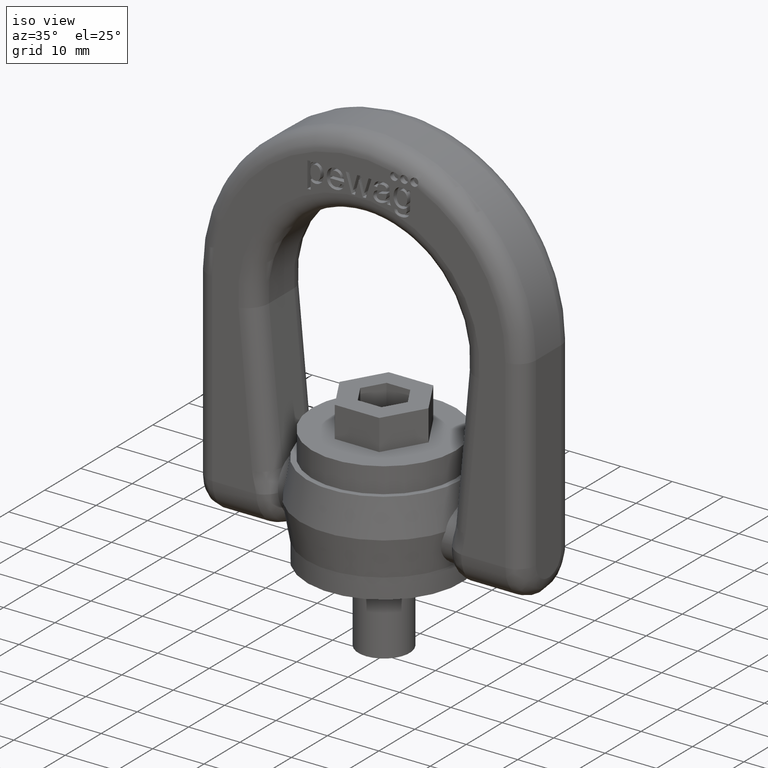
[diagram: clean part render]
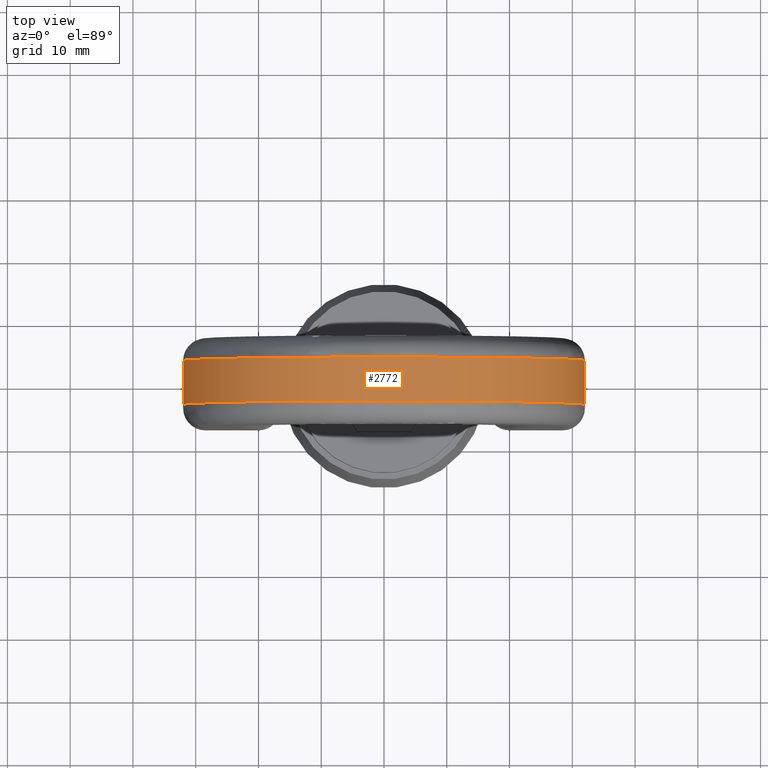
[diagram: tour spotlight — one face highlighted and labeled with its STEP entity id]
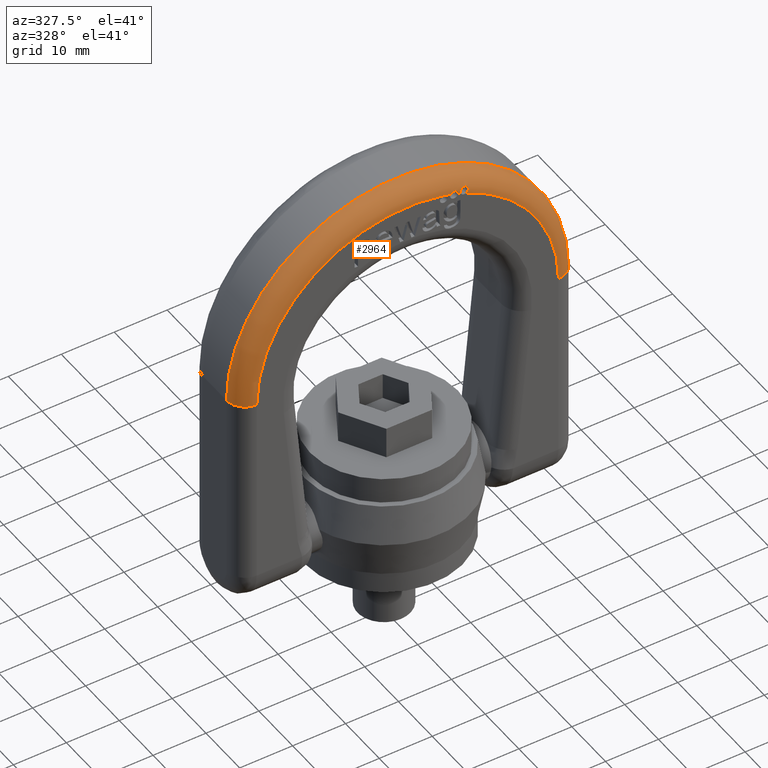
[diagram: tour spotlight — one face highlighted and labeled with its STEP entity id]
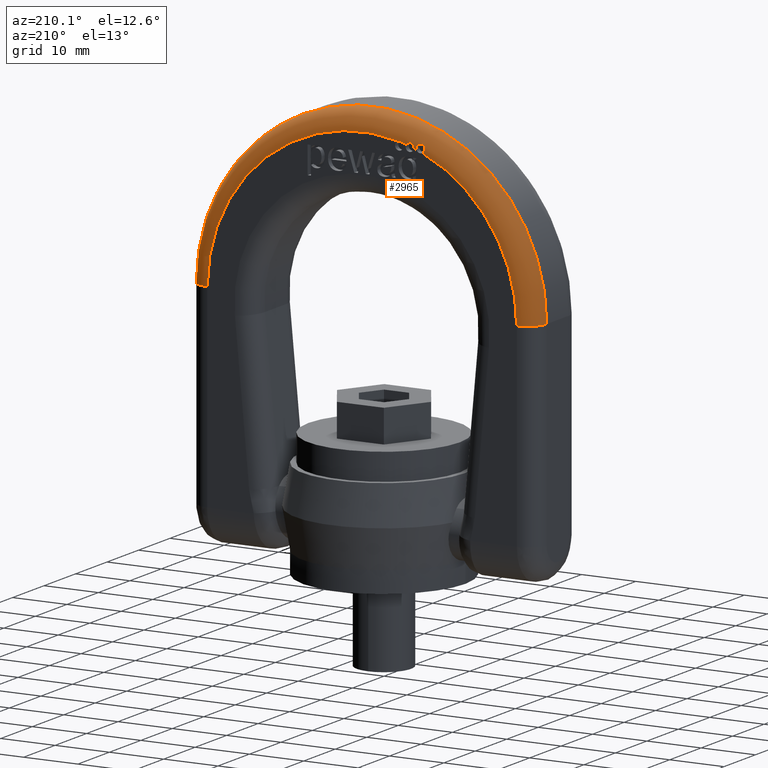
[diagram: tour spotlight — one face highlighted and labeled with its STEP entity id]
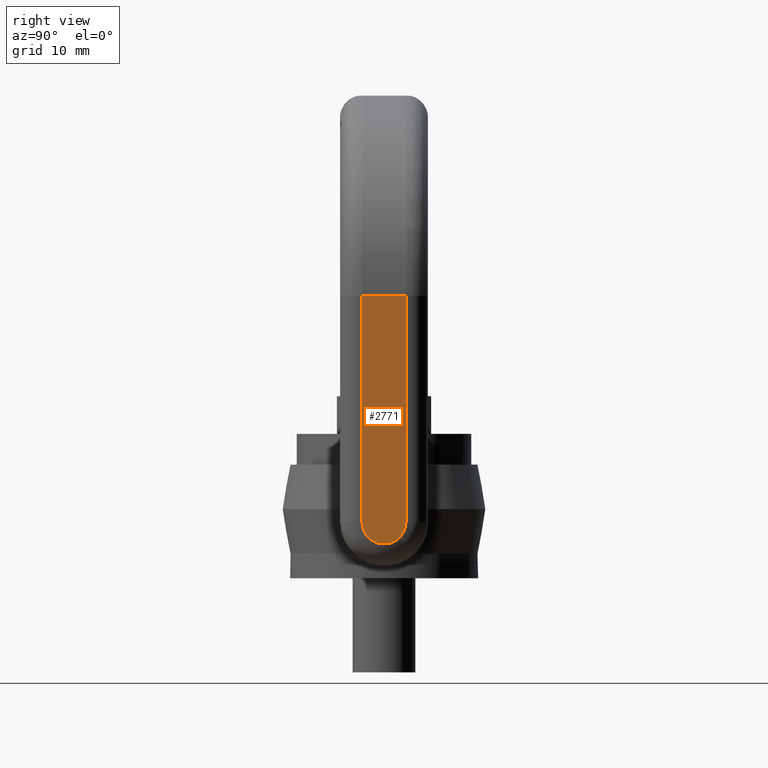
[diagram: tour spotlight — one face highlighted and labeled with its STEP entity id]
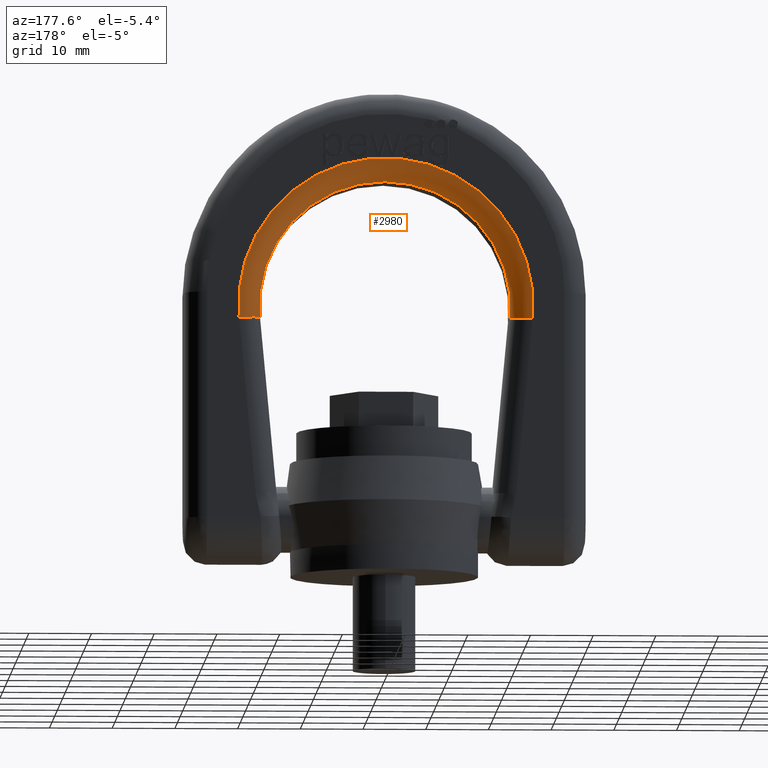
[diagram: tour spotlight — one face highlighted and labeled with its STEP entity id]
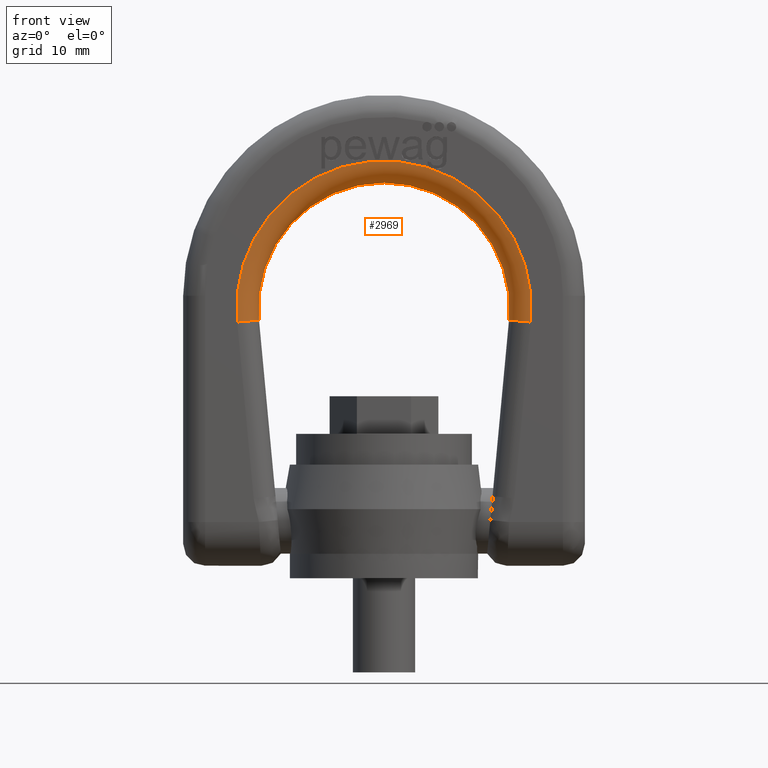
[diagram: tour spotlight — one face highlighted and labeled with its STEP entity id]
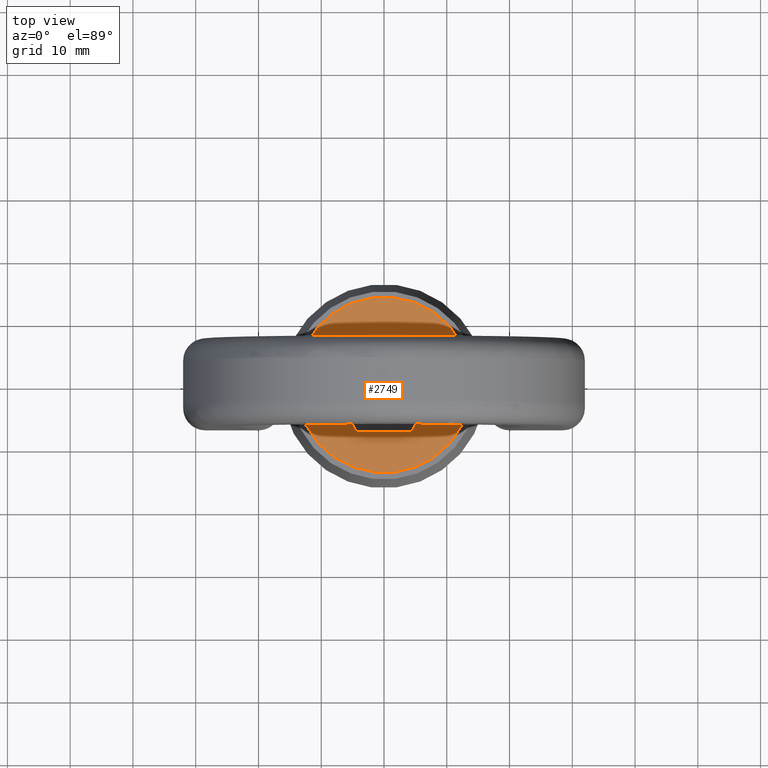
[diagram: tour spotlight — one face highlighted and labeled with its STEP entity id]
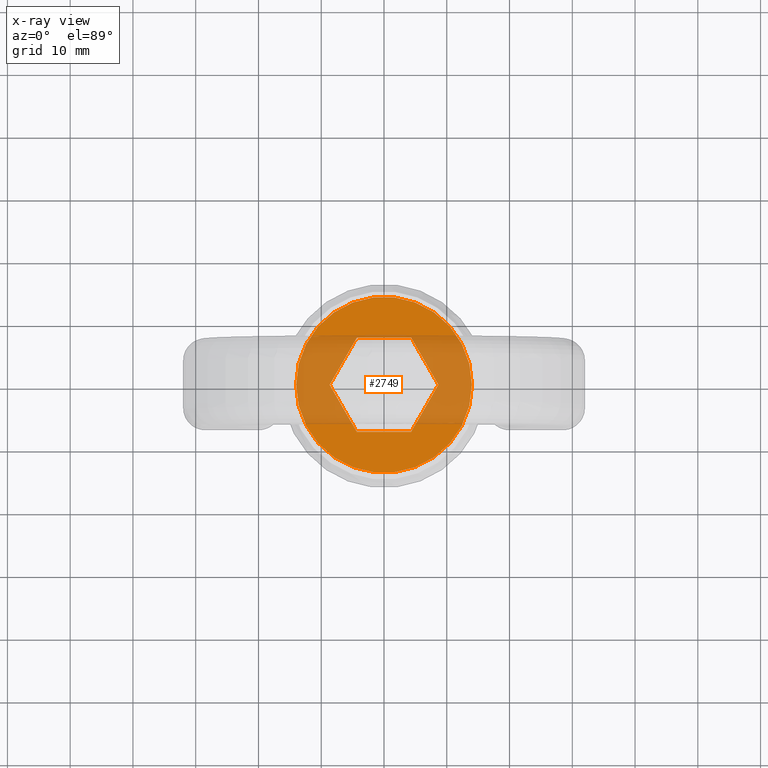
[diagram: x-ray of the same camera — body ghosted, this tour face saturated]
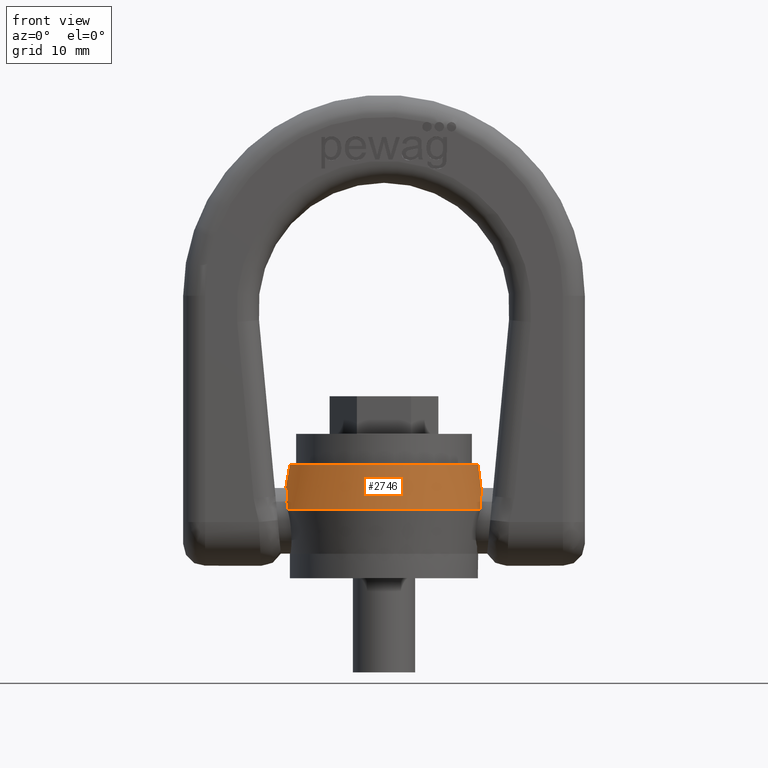
[diagram: tour spotlight — one face highlighted and labeled with its STEP entity id]
A machine part: a face-by-face anatomy tour. The part has 240 B-rep faces; the first image is the clean iso view, then the 8 largest visible faces are spotlighted one at a time (largest first), each with its STEP entity span.

Face 1 — top view, entity #2772. In plain terms, the highlighted cylindrical surface (partial cylindrical patch) has radius 32 mm, axis along (0, 1, 0).
Definition (entity closure, byte-faithful):
#1833=LINE('',#7069,#2115);
#1843=LINE('',#7104,#2125);
#2115=VECTOR('',#5990,1.);
#2125=VECTOR('',#6020,1.);
#2434=FACE_OUTER_BOUND('',#3108,.T.);
#2772=ADVANCED_FACE('',(#2434),#2987,.T.);
#2987=CYLINDRICAL_SURFACE('',#5673,32.);
#3108=EDGE_LOOP('',(#3535,#3536,#3537,#3538));
#3535=ORIENTED_EDGE('',*,*,#5099,.T.);
#3536=ORIENTED_EDGE('',*,*,#5101,.T.);
#3537=ORIENTED_EDGE('',*,*,#5083,.F.);
#3538=ORIENTED_EDGE('',*,*,#5102,.T.);
#4667=VERTEX_POINT('',#7070);
#4668=VERTEX_POINT('',#7071);
#4681=VERTEX_POINT('',#7103);
#4682=VERTEX_POINT('',#7105);
#5083=EDGE_CURVE('',#4667,#4668,#1833,.T.);
#5099=EDGE_CURVE('',#4682,#4681,#1843,.T.);
#5101=EDGE_CURVE('',#4681,#4668,#5579,.T.);
#5102=EDGE_CURVE('',#4667,#4682,#5580,.T.);
#5579=CIRCLE('',#5671,32.);
#5580=CIRCLE('',#5672,32.);
#5671=AXIS2_PLACEMENT_3D('',#7108,#6024,#6025);
#5672=AXIS2_PLACEMENT_3D('',#7109,#6026,#6027);
#5673=AXIS2_PLACEMENT_3D('',#7110,#6028,#6029);
#5990=DIRECTION('',(0.,1.,0.));
#6020=DIRECTION('',(0.,1.,0.));
#6024=DIRECTION('',(-2.34291072916505E-15,-1.,0.));
#6025=DIRECTION('',(1.,-2.3445871979999E-15,0.));
#6026=DIRECTION('',(0.,1.,0.));
#6027=DIRECTION('',(0.,0.,1.));
#6028=DIRECTION('',(0.,1.,0.));
#6029=DIRECTION('',(0.,0.,1.));
#7069=CARTESIAN_POINT('',(-32.,-7.,45.));
#7070=CARTESIAN_POINT('',(-32.,-3.5,45.));
#7071=CARTESIAN_POINT('',(-32.,3.50000000000007,45.));
#7103=CARTESIAN_POINT('',(32.,3.49999999999992,45.));
#7104=CARTESIAN_POINT('',(32.,-7.,45.));
#7105=CARTESIAN_POINT('',(32.,-3.5,45.));
#7108=CARTESIAN_POINT('',(-6.93889390390723E-15,3.49999999999999,45.));
#7109=CARTESIAN_POINT('',(-6.93889390390723E-15,-3.5,45.));
#7110=CARTESIAN_POINT('',(-6.93889390390723E-15,-7.,45.));

Face 2 — auxiliary view, entity #2964. In plain terms, the highlighted toroidal blend (fillet) surface has major radius 28.5 mm and minor (blend) radius 3.5 mm.
Definition (entity closure, byte-faithful):
#209=TOROIDAL_SURFACE('',#5799,28.5,3.5);
#357=B_SPLINE_CURVE_WITH_KNOTS('',3,(#7113,#7114,#7115,#7116,#7117,#7118,
#7119,#7120,#7121,#7122,#7123,#7124,#7125,#7126,#7127,#7128,#7129,#7130,
#7131,#7132,#7133,#7134,#7135,#7136,#7137),.UNSPECIFIED.,.F.,.F.,(4,3,3,
3,3,3,3,3,4),(0.,0.124891175513873,0.249683168515219,0.375807004107994,
0.501847207664269,0.626400478712195,0.750895691613409,0.876854984452982,
1.),.UNSPECIFIED.);
#358=B_SPLINE_CURVE_WITH_KNOTS('',3,(#7142,#7143,#7144,#7145,#7146,#7147,
#7148),.UNSPECIFIED.,.F.,.F.,(4,3,4),(0.,0.649482804759218,1.),
 .UNSPECIFIED.);
#383=B_SPLINE_CURVE_WITH_KNOTS('',3,(#7358,#7359,#7360,#7361,#7362,#7363,
#7364,#7365,#7366,#7367,#7368,#7369,#7370,#7371,#7372,#7373,#7374,#7375,
#7376,#7377,#7378,#7379,#7380,#7381,#7382,#7383,#7384,#7385,#7386,#7387,
#7388,#7389,#7390,#7391,#7392,#7393,#7394,#7395,#7396,#7397,#7398,#7399,
#7400),.UNSPECIFIED.,.F.,.F.,(4,3,3,3,3,3,3,3,3,3,3,3,3,3,4),(0.,0.0720363637614521,
0.14408564009505,0.216049266328514,0.289764553616163,0.365923573314102,
0.442048626976872,0.514456913784576,0.583455080580778,0.653082710806689,
0.726414047090838,0.802777441224228,0.878621510332889,0.9518485274673,1.),
 .UNSPECIFIED.);
#2610=FACE_OUTER_BOUND('',#3320,.T.);
#2964=ADVANCED_FACE('',(#2610),#209,.T.);
#3320=EDGE_LOOP('',(#4469,#4470,#4471,#4472,#4473,#4474,#4475,#4476,#4477,
#4478));
#4469=ORIENTED_EDGE('',*,*,#5136,.F.);
#4470=ORIENTED_EDGE('',*,*,#5047,.F.);
#4471=ORIENTED_EDGE('',*,*,#5541,.F.);
#4472=ORIENTED_EDGE('',*,*,#5102,.F.);
#4473=ORIENTED_EDGE('',*,*,#5539,.T.);
#4474=ORIENTED_EDGE('',*,*,#5053,.F.);
#4475=ORIENTED_EDGE('',*,*,#5106,.F.);
#4476=ORIENTED_EDGE('',*,*,#5051,.F.);
#4477=ORIENTED_EDGE('',*,*,#5104,.F.);
#4478=ORIENTED_EDGE('',*,*,#5049,.F.);
#4631=VERTEX_POINT('',#6954);
#4632=VERTEX_POINT('',#6956);
#4633=VERTEX_POINT('',#6958);
#4634=VERTEX_POINT('',#6960);
#4635=VERTEX_POINT('',#6962);
#4636=VERTEX_POINT('',#6964);
#4637=VERTEX_POINT('',#6966);
#4638=VERTEX_POINT('',#6968);
#4667=VERTEX_POINT('',#7070);
#4682=VERTEX_POINT('',#7105);
#5047=EDGE_CURVE('',#4631,#4632,#5568,.T.);
#5049=EDGE_CURVE('',#4633,#4634,#5570,.T.);
#5051=EDGE_CURVE('',#4635,#4636,#5572,.T.);
#5053=EDGE_CURVE('',#4637,#4638,#5574,.T.);
#5102=EDGE_CURVE('',#4667,#4682,#5580,.T.);
#5104=EDGE_CURVE('',#4634,#4635,#357,.T.);
#5106=EDGE_CURVE('',#4636,#4637,#358,.T.);
#5136=EDGE_CURVE('',#4632,#4633,#383,.T.);
#5539=EDGE_CURVE('',#4667,#4638,#5597,.T.);
#5541=EDGE_CURVE('',#4682,#4631,#5599,.T.);
#5568=CIRCLE('',#5652,28.5);
#5570=CIRCLE('',#5654,28.5);
#5572=CIRCLE('',#5656,28.5);
#5574=CIRCLE('',#5658,28.5);
#5580=CIRCLE('',#5672,32.);
#5597=CIRCLE('',#5794,3.5);
#5599=CIRCLE('',#5798,3.5);
#5652=AXIS2_PLACEMENT_3D('',#6955,#5955,#5956);
#5654=AXIS2_PLACEMENT_3D('',#6959,#5959,#5960);
#5656=AXIS2_PLACEMENT_3D('',#6963,#5963,#5964);
#5658=AXIS2_PLACEMENT_3D('',#6967,#5967,#5968);
#5672=AXIS2_PLACEMENT_3D('',#7109,#6026,#6027);
#5794=AXIS2_PLACEMENT_3D('',#9527,#6554,#6555);
#5798=AXIS2_PLACEMENT_3D('',#9531,#6562,#6563);
#5799=AXIS2_PLACEMENT_3D('',#9532,#6564,#6565);
#5955=DIRECTION('',(0.,-1.,0.));
#5956=DIRECTION('',(0.,0.,1.));
#5959=DIRECTION('',(0.,-1.,0.));
#5960=DIRECTION('',(0.,0.,1.));
#5963=DIRECTION('',(0.,-1.,0.));
#5964=DIRECTION('',(0.,0.,1.));
#5967=DIRECTION('',(0.,-1.,0.));
#5968=DIRECTION('',(0.,0.,1.));
#6026=DIRECTION('',(0.,1.,0.));
#6027=DIRECTION('',(0.,0.,1.));
#6554=DIRECTION('',(0.,0.,1.));
#6555=DIRECTION('',(1.,0.,0.));
#6562=DIRECTION('',(0.,0.,-1.));
#6563=DIRECTION('',(-1.,0.,0.));
#6564=DIRECTION('',(0.,1.,0.));
#6565=DIRECTION('',(0.,0.,1.));
#6954=CARTESIAN_POINT('',(28.5,-7.,45.));
#6955=CARTESIAN_POINT('',(-6.93889390390723E-15,-7.,45.));
#6956=CARTESIAN_POINT('',(11.0960169977955,-7.,71.2512553373097));
#6958=CARTESIAN_POINT('',(10.0407917151085,-7.,71.6726920601166));
#6959=CARTESIAN_POINT('',(-6.93889390390723E-15,-7.,45.));
#6960=CARTESIAN_POINT('',(9.54731677113195,-7.,71.8532817821521));
#6962=CARTESIAN_POINT('',(8.15956921363637,-7.,72.3069850083797));
#6963=CARTESIAN_POINT('',(-6.93889390390723E-15,-7.,45.));
#6964=CARTESIAN_POINT('',(7.21582951248149,-7.,72.5713946772157));
#6966=CARTESIAN_POINT('',(6.84164670590964,-7.,72.6666201468758));
#6967=CARTESIAN_POINT('',(-6.93889390390723E-15,-7.,45.));
#6968=CARTESIAN_POINT('',(-28.5,-7.,45.));
#7070=CARTESIAN_POINT('',(-32.,-3.5,45.));
#7105=CARTESIAN_POINT('',(32.,-3.5,45.));
#7109=CARTESIAN_POINT('',(-6.93889390390723E-15,-3.5,45.));
#7113=CARTESIAN_POINT('',(9.54731677113195,-7.,71.8532817821521));
#7114=CARTESIAN_POINT('',(9.55436055716988,-7.,71.9363290177625));
#7115=CARTESIAN_POINT('',(9.54725489457238,-6.9970884069723,72.021719807432));
#7116=CARTESIAN_POINT('',(9.52665058197212,-6.99256973269201,72.1023517003112));
#7117=CARTESIAN_POINT('',(9.50605614023308,-6.98805322316275,72.1829449650528));
#7118=CARTESIAN_POINT('',(9.47143854953729,-6.9818680251919,72.2610131187223));
#7119=CARTESIAN_POINT('',(9.42561001841598,-6.97590150505481,72.3303236560402));
#7120=CARTESIAN_POINT('',(9.37930740908201,-6.96987326360279,72.4003511837317));
#7121=CARTESIAN_POINT('',(9.32026459465992,-6.96396334674648,72.4633769259454));
#7122=CARTESIAN_POINT('',(9.25328858854268,-6.95986823948581,72.514186085177));
#7123=CARTESIAN_POINT('',(9.1863713287106,-6.95577672414339,72.5649506784585));
#7124=CARTESIAN_POINT('',(9.10965155009317,-6.95342932066594,72.6049163432531));
#7125=CARTESIAN_POINT('',(9.02959542380646,-6.95349486354417,72.6306596227714));
#7126=CARTESIAN_POINT('',(8.95045657724406,-6.95355965543486,72.6561079368768));
#7127=CARTESIAN_POINT('',(8.86588529950408,-6.95598030642988,72.6683666630244));
#7128=CARTESIAN_POINT('',(8.782878285,-6.96008161219564,72.6664712057803));
#7129=CARTESIAN_POINT('',(8.69989015241684,-6.96418198502179,72.664576179703));
#7130=CARTESIAN_POINT('',(8.61620220576353,-6.97002933353925,72.648507056714));
#7131=CARTESIAN_POINT('',(8.53850657479776,-6.97598321126619,72.6196042091098));
#7132=CARTESIAN_POINT('',(8.45992072452874,-6.98200530720328,72.5903701990897));
#7133=CARTESIAN_POINT('',(8.38529123247855,-6.98824201533684,72.5471925533119));
#7134=CARTESIAN_POINT('',(8.3207248377085,-6.99275568954569,72.4935508134504));
#7135=CARTESIAN_POINT('',(8.25757975584822,-6.99717000334505,72.441089899894));
#7136=CARTESIAN_POINT('',(8.20235473524249,-7.,72.3771871032312));
#7137=CARTESIAN_POINT('',(8.15956921363637,-7.,72.3069850083797));
#7142=CARTESIAN_POINT('',(7.21582951248149,-7.,72.5713946772157));
#7143=CARTESIAN_POINT('',(7.14254986869305,-7.,72.6123397046623));
#7144=CARTESIAN_POINT('',(7.061190434472,-6.99988762440452,72.6411975495318));
#7145=CARTESIAN_POINT('',(6.97848862921128,-6.99992797969883,72.655578482896));
#7146=CARTESIAN_POINT('',(6.93340296414113,-6.99994997976615,72.6634183836456));
#7147=CARTESIAN_POINT('',(6.88740609774985,-7.,72.6671298340331));
#7148=CARTESIAN_POINT('',(6.84164670590964,-7.,72.6666201468758));
#7358=CARTESIAN_POINT('',(11.0960169977955,-7.,71.2512553373097));
#7359=CARTESIAN_POINT('',(11.1693862252215,-7.,71.2894076781018));
#7360=CARTESIAN_POINT('',(11.2372801737552,-6.99816113361531,71.3405815941575));
#7361=CARTESIAN_POINT('',(11.2941017623781,-6.99340023683159,71.4004755468505));
#7362=CARTESIAN_POINT('',(11.3509314308399,-6.98863866306433,71.4603780162623));
#7363=CARTESIAN_POINT('',(11.3982296159629,-6.9807818125134,71.5306327991326));
#7364=CARTESIAN_POINT('',(11.4322797450481,-6.96997404913706,71.6052275080866));
#7365=CARTESIAN_POINT('',(11.4663062446217,-6.9591737859429,71.6797704511121));
#7366=CARTESIAN_POINT('',(11.4880570849796,-6.94514909998994,71.7606107829472));
#7367=CARTESIAN_POINT('',(11.4962064740908,-6.92935672267564,71.8413281106351));
#7368=CARTESIAN_POINT('',(11.504553709584,-6.91318094672013,71.9240050491618));
#7369=CARTESIAN_POINT('',(11.4989032680172,-6.89475457072085,72.0087528487409));
#7370=CARTESIAN_POINT('',(11.4798815663193,-6.87656560548237,72.0892149183164));
#7371=CARTESIAN_POINT('',(11.4602474900999,-6.85779107439603,72.1722673408544));
#7372=CARTESIAN_POINT('',(11.425798616148,-6.83879648218635,72.2530801483131));
#7373=CARTESIAN_POINT('',(11.3790204074076,-6.82273769534149,72.3251190225966));
#7374=CARTESIAN_POINT('',(11.3323103055325,-6.80670228933276,72.3970530116775));
#7375=CARTESIAN_POINT('',(11.2718268537045,-6.79321502408848,72.4623242604527));
#7376=CARTESIAN_POINT('',(11.202558316852,-6.78496931340843,72.5147393795102));
#7377=CARTESIAN_POINT('',(11.1366334816826,-6.77712163620695,72.5646243379815));
#7378=CARTESIAN_POINT('',(11.0608001507055,-6.77386049317621,72.6042678960395));
#7379=CARTESIAN_POINT('',(10.9818472584142,-6.77585916714954,72.6299315885336));
#7380=CARTESIAN_POINT('',(10.9064878114888,-6.7777668738952,72.6544272291148));
#7381=CARTESIAN_POINT('',(10.8262654918863,-6.78447760641523,72.6669070137446));
#7382=CARTESIAN_POINT('',(10.7476719544953,-6.79475954967326,72.6666630534607));
#7383=CARTESIAN_POINT('',(10.6683057490482,-6.80514257667653,72.6664166947567));
#7384=CARTESIAN_POINT('',(10.5885341063364,-6.81936438271015,72.6532715375479));
#7385=CARTESIAN_POINT('',(10.5140460119327,-6.83514069047853,72.6285835968735));
#7386=CARTESIAN_POINT('',(10.435646932143,-6.85174533074247,72.6025994198547));
#7387=CARTESIAN_POINT('',(10.361014652144,-6.87045083007278,72.5631673352057));
#7388=CARTESIAN_POINT('',(10.2955467793802,-6.88846726638539,72.5133007842532));
#7389=CARTESIAN_POINT('',(10.2274582497119,-6.9072048945777,72.4614380920555));
#7390=CARTESIAN_POINT('',(10.1674056028693,-6.92566567837278,72.3967885181543));
#7391=CARTESIAN_POINT('',(10.120531449759,-6.94127534142549,72.3244280481846));
#7392=CARTESIAN_POINT('',(10.0739995059715,-6.95677104461187,72.2525958528777));
#7393=CARTESIAN_POINT('',(10.0391797155544,-6.96986163940686,72.1710515267169));
#7394=CARTESIAN_POINT('',(10.0195601983439,-6.97924615273703,72.0868362766343));
#7395=CARTESIAN_POINT('',(10.000604518947,-6.98831313558236,72.0054704986818));
#7396=CARTESIAN_POINT('',(9.99531739416408,-6.99419410437376,71.9193221802899));
#7397=CARTESIAN_POINT('',(10.0043691100465,-6.99719917961371,71.8358299426657));
#7398=CARTESIAN_POINT('',(10.0103715380147,-6.99919192307813,71.7804640707422));
#7399=CARTESIAN_POINT('',(10.022664097365,-7.,71.7253871207659));
#7400=CARTESIAN_POINT('',(10.0407917151085,-7.,71.6726920601166));
#9527=CARTESIAN_POINT('',(-28.5,-3.5,45.));
#9531=CARTESIAN_POINT('',(28.5,-3.5,45.));
#9532=CARTESIAN_POINT('',(-6.93889390390723E-15,-3.5,45.));

Face 3 — auxiliary view, entity #2965. In plain terms, the highlighted toroidal blend (fillet) surface has major radius 28.5 mm and minor (blend) radius 3.5 mm.
Definition (entity closure, byte-faithful):
#210=TOROIDAL_SURFACE('',#5801,28.5,3.5);
#530=B_SPLINE_CURVE_WITH_KNOTS('',3,(#8466,#8467,#8468,#8469,#8470,#8471,
#8472,#8473,#8474,#8475,#8476,#8477,#8478,#8479,#8480,#8481,#8482,#8483,
#8484,#8485,#8486,#8487,#8488,#8489,#8490),.UNSPECIFIED.,.F.,.F.,(4,3,3,
3,3,3,3,3,4),(0.,0.124891175513873,0.249683168515219,0.375807004107994,
0.501847207664269,0.626400478712195,0.750895691613408,0.876854984452981,
1.),.UNSPECIFIED.);
#531=B_SPLINE_CURVE_WITH_KNOTS('',3,(#8495,#8496,#8497,#8498,#8499,#8500,
#8501),.UNSPECIFIED.,.F.,.F.,(4,3,4),(0.,0.649482804759324,1.),
 .UNSPECIFIED.);
#556=B_SPLINE_CURVE_WITH_KNOTS('',3,(#8711,#8712,#8713,#8714,#8715,#8716,
#8717,#8718,#8719,#8720,#8721,#8722,#8723,#8724,#8725,#8726,#8727,#8728,
#8729,#8730,#8731,#8732,#8733,#8734,#8735,#8736,#8737,#8738,#8739,#8740,
#8741,#8742,#8743,#8744,#8745,#8746,#8747,#8748,#8749,#8750,#8751,#8752,
#8753),.UNSPECIFIED.,.F.,.F.,(4,3,3,3,3,3,3,3,3,3,3,3,3,3,4),(0.,0.0720363637614495,
0.144085640095047,0.216049266328508,0.289764553616157,0.365923573314095,
0.442048626976867,0.51445691378457,0.583455080580775,0.653082710806686,
0.726414047090836,0.802777441224228,0.878621510332889,0.951848527467296,
1.),.UNSPECIFIED.);
#2611=FACE_OUTER_BOUND('',#3321,.T.);
#2965=ADVANCED_FACE('',(#2611),#210,.T.);
#3321=EDGE_LOOP('',(#4479,#4480,#4481,#4482,#4483,#4484,#4485,#4486,#4487,
#4488));
#4479=ORIENTED_EDGE('',*,*,#5540,.T.);
#4480=ORIENTED_EDGE('',*,*,#5101,.F.);
#4481=ORIENTED_EDGE('',*,*,#5542,.F.);
#4482=ORIENTED_EDGE('',*,*,#5316,.F.);
#4483=ORIENTED_EDGE('',*,*,#5360,.F.);
#4484=ORIENTED_EDGE('',*,*,#5314,.F.);
#4485=ORIENTED_EDGE('',*,*,#5358,.F.);
#4486=ORIENTED_EDGE('',*,*,#5312,.F.);
#4487=ORIENTED_EDGE('',*,*,#5390,.F.);
#4488=ORIENTED_EDGE('',*,*,#5310,.F.);
#4668=VERTEX_POINT('',#7071);
#4681=VERTEX_POINT('',#7103);
#4807=VERTEX_POINT('',#8286);
#4808=VERTEX_POINT('',#8288);
#4809=VERTEX_POINT('',#8290);
#4810=VERTEX_POINT('',#8292);
#4811=VERTEX_POINT('',#8294);
#4812=VERTEX_POINT('',#8296);
#4813=VERTEX_POINT('',#8298);
#4814=VERTEX_POINT('',#8300);
#5101=EDGE_CURVE('',#4681,#4668,#5579,.T.);
#5310=EDGE_CURVE('',#4807,#4808,#5585,.T.);
#5312=EDGE_CURVE('',#4809,#4810,#5587,.T.);
#5314=EDGE_CURVE('',#4811,#4812,#5589,.T.);
#5316=EDGE_CURVE('',#4813,#4814,#5591,.T.);
#5358=EDGE_CURVE('',#4810,#4811,#530,.T.);
#5360=EDGE_CURVE('',#4812,#4813,#531,.T.);
#5390=EDGE_CURVE('',#4808,#4809,#556,.T.);
#5540=EDGE_CURVE('',#4807,#4668,#5598,.T.);
#5542=EDGE_CURVE('',#4814,#4681,#5600,.T.);
#5579=CIRCLE('',#5671,32.);
#5585=CIRCLE('',#5726,28.5);
#5587=CIRCLE('',#5728,28.5);
#5589=CIRCLE('',#5730,28.5);
#5591=CIRCLE('',#5732,28.5);
#5598=CIRCLE('',#5796,3.5);
#5600=CIRCLE('',#5800,3.5);
#5671=AXIS2_PLACEMENT_3D('',#7108,#6024,#6025);
#5726=AXIS2_PLACEMENT_3D('',#8287,#6271,#6272);
#5728=AXIS2_PLACEMENT_3D('',#8291,#6275,#6276);
#5730=AXIS2_PLACEMENT_3D('',#8295,#6279,#6280);
#5732=AXIS2_PLACEMENT_3D('',#8299,#6283,#6284);
#5796=AXIS2_PLACEMENT_3D('',#9529,#6558,#6559);
#5800=AXIS2_PLACEMENT_3D('',#9533,#6566,#6567);
#5801=AXIS2_PLACEMENT_3D('',#9534,#6568,#6569);
#6024=DIRECTION('',(-2.34291072916505E-15,-1.,0.));
#6025=DIRECTION('',(1.,-2.3445871979999E-15,0.));
#6271=DIRECTION('',(2.34291072916505E-15,1.,0.));
#6272=DIRECTION('',(1.,-2.34339837982832E-15,0.));
#6275=DIRECTION('',(2.34291072916505E-15,1.,0.));
#6276=DIRECTION('',(1.,-2.34339837982832E-15,0.));
#6279=DIRECTION('',(2.34291072916505E-15,1.,0.));
#6280=DIRECTION('',(1.,-2.34339837982832E-15,0.));
#6283=DIRECTION('',(2.34291072916505E-15,1.,0.));
#6284=DIRECTION('',(1.,-2.34339837982832E-15,0.));
#6558=DIRECTION('',(0.,0.,1.));
#6559=DIRECTION('',(1.,0.,0.));
#6566=DIRECTION('',(0.,0.,-1.));
#6567=DIRECTION('',(-1.,0.,0.));
#6568=DIRECTION('',(-2.34291072916505E-15,-1.,0.));
#6569=DIRECTION('',(1.,-2.3445871979999E-15,0.));
#7071=CARTESIAN_POINT('',(-32.,3.50000000000007,45.));
#7103=CARTESIAN_POINT('',(32.,3.49999999999992,45.));
#7108=CARTESIAN_POINT('',(-6.93889390390723E-15,3.49999999999999,45.));
#8286=CARTESIAN_POINT('',(-28.5,7.00000000000007,45.));
#8287=CARTESIAN_POINT('',(1.26129364817044E-15,7.,45.));
#8288=CARTESIAN_POINT('',(-11.0960169977955,7.00000000000003,71.2512553373097));
#8290=CARTESIAN_POINT('',(-10.0407917151085,7.00000000000002,71.6726920601166));
#8291=CARTESIAN_POINT('',(1.26129364817044E-15,7.,45.));
#8292=CARTESIAN_POINT('',(-9.54731677113193,7.00000000000002,71.8532817821521));
#8294=CARTESIAN_POINT('',(-8.15956921363635,7.00000000000002,72.3069850083797));
#8295=CARTESIAN_POINT('',(1.26129364817044E-15,7.,45.));
#8296=CARTESIAN_POINT('',(-7.21582951248145,7.00000000000002,72.5713946772157));
#8298=CARTESIAN_POINT('',(-6.84164670590965,7.00000000000002,72.6666201468758));
#8299=CARTESIAN_POINT('',(1.26129364817044E-15,7.,45.));
#8300=CARTESIAN_POINT('',(28.5,6.99999999999993,45.));
#8466=CARTESIAN_POINT('',(-9.54731677113193,7.00000000000002,71.8532817821521));
#8467=CARTESIAN_POINT('',(-9.55436055716987,7.00000000000002,71.9363290177625));
#8468=CARTESIAN_POINT('',(-9.54725489457236,6.99708840697232,72.021719807432));
#8469=CARTESIAN_POINT('',(-9.52665058197211,6.99256973269204,72.1023517003112));
#8470=CARTESIAN_POINT('',(-9.50605614023307,6.98805322316277,72.1829449650528));
#8471=CARTESIAN_POINT('',(-9.47143854953727,6.98186802519192,72.2610131187223));
#8472=CARTESIAN_POINT('',(-9.42561001841596,6.97590150505483,72.3303236560402));
#8473=CARTESIAN_POINT('',(-9.37930740908199,6.96987326360281,72.4003511837317));
#8474=CARTESIAN_POINT('',(-9.32026459465991,6.9639633467465,72.4633769259454));
#8475=CARTESIAN_POINT('',(-9.25328858854267,6.95986823948583,72.514186085177));
#8476=CARTESIAN_POINT('',(-9.18637132871059,6.95577672414341,72.5649506784585));
#8477=CARTESIAN_POINT('',(-9.10965155009316,6.95342932066596,72.6049163432531));
#8478=CARTESIAN_POINT('',(-9.02959542380645,6.95349486354419,72.6306596227714));
#8479=CARTESIAN_POINT('',(-8.95045657724404,6.95355965543488,72.6561079368768));
#8480=CARTESIAN_POINT('',(-8.86588529950406,6.95598030642991,72.6683666630244));
#8481=CARTESIAN_POINT('',(-8.78287828499998,6.96008161219566,72.6664712057803));
#8482=CARTESIAN_POINT('',(-8.69989015241682,6.96418198502181,72.664576179703));
#8483=CARTESIAN_POINT('',(-8.61620220576352,6.97002933353927,72.648507056714));
#8484=CARTESIAN_POINT('',(-8.53850657479774,6.97598321126621,72.6196042091098));
#8485=CARTESIAN_POINT('',(-8.45992072452873,6.9820053072033,72.5903701990897));
#8486=CARTESIAN_POINT('',(-8.38529123247853,6.98824201533686,72.5471925533119));
#8487=CARTESIAN_POINT('',(-8.32072483770848,6.99275568954571,72.4935508134504));
#8488=CARTESIAN_POINT('',(-8.25757975584821,6.99717000334507,72.441089899894));
#8489=CARTESIAN_POINT('',(-8.20235473524247,7.00000000000002,72.3771871032312));
#8490=CARTESIAN_POINT('',(-8.15956921363635,7.00000000000002,72.3069850083797));
#8495=CARTESIAN_POINT('',(-7.21582951248145,7.00000000000002,72.5713946772157));
#8496=CARTESIAN_POINT('',(-7.142549868693,7.00000000000002,72.6123397046623));
#8497=CARTESIAN_POINT('',(-7.06119043447195,6.99988762440454,72.6411975495318));
#8498=CARTESIAN_POINT('',(-6.97848862921123,6.99992797969885,72.655578482896));
#8499=CARTESIAN_POINT('',(-6.9334029641411,6.99994997976617,72.6634183836456));
#8500=CARTESIAN_POINT('',(-6.88740609774984,7.00000000000002,72.6671298340331));
#8501=CARTESIAN_POINT('',(-6.84164670590965,7.00000000000002,72.6666201468758));
#8711=CARTESIAN_POINT('',(-11.0960169977955,7.00000000000003,71.2512553373097));
#8712=CARTESIAN_POINT('',(-11.1693862252215,7.00000000000003,71.2894076781018));
#8713=CARTESIAN_POINT('',(-11.2372801737552,6.99816113361534,71.3405815941575));
#8714=CARTESIAN_POINT('',(-11.294101762378,6.99340023683162,71.4004755468505));
#8715=CARTESIAN_POINT('',(-11.3509314308399,6.98863866306436,71.4603780162623));
#8716=CARTESIAN_POINT('',(-11.3982296159628,6.98078181251342,71.5306327991326));
#8717=CARTESIAN_POINT('',(-11.4322797450481,6.96997404913709,71.6052275080866));
#8718=CARTESIAN_POINT('',(-11.4663062446217,6.95917378594293,71.6797704511121));
#8719=CARTESIAN_POINT('',(-11.4880570849795,6.94514909998997,71.7606107829472));
#8720=CARTESIAN_POINT('',(-11.4962064740908,6.92935672267567,71.8413281106351));
#8721=CARTESIAN_POINT('',(-11.5045537095839,6.91318094672016,71.9240050491618));
#8722=CARTESIAN_POINT('',(-11.4989032680172,6.89475457072088,72.0087528487409));
#8723=CARTESIAN_POINT('',(-11.4798815663192,6.8765656054824,72.0892149183164));
#8724=CARTESIAN_POINT('',(-11.4602474900999,6.85779107439606,72.1722673408544));
#8725=CARTESIAN_POINT('',(-11.425798616148,6.83879648218638,72.253080148313));
#8726=CARTESIAN_POINT('',(-11.3790204074076,6.82273769534153,72.3251190225966));
#8727=CARTESIAN_POINT('',(-11.3323103055325,6.80670228933279,72.3970530116775));
#8728=CARTESIAN_POINT('',(-11.2718268537045,6.79321502408852,72.4623242604527));
#8729=CARTESIAN_POINT('',(-11.202558316852,6.78496931340846,72.5147393795102));
#8730=CARTESIAN_POINT('',(-11.1366334816826,6.77712163620698,72.5646243379815));
#8731=CARTESIAN_POINT('',(-11.0608001507055,6.77386049317624,72.6042678960395));
#8732=CARTESIAN_POINT('',(-10.9818472584142,6.77585916714957,72.6299315885336));
#8733=CARTESIAN_POINT('',(-10.9064878114888,6.77776687389523,72.6544272291148));
#8734=CARTESIAN_POINT('',(-10.8262654918863,6.78447760641525,72.6669070137446));
#8735=CARTESIAN_POINT('',(-10.7476719544953,6.79475954967328,72.6666630534607));
#8736=CARTESIAN_POINT('',(-10.6683057490481,6.80514257667655,72.6664166947567));
#8737=CARTESIAN_POINT('',(-10.5885341063364,6.81936438271018,72.653271537548));
#8738=CARTESIAN_POINT('',(-10.5140460119326,6.83514069047856,72.6285835968735));
#8739=CARTESIAN_POINT('',(-10.435646932143,6.85174533074249,72.6025994198547));
#8740=CARTESIAN_POINT('',(-10.361014652144,6.87045083007281,72.5631673352057));
#8741=CARTESIAN_POINT('',(-10.2955467793802,6.88846726638542,72.5133007842532));
#8742=CARTESIAN_POINT('',(-10.2274582497119,6.90720489457772,72.4614380920555));
#8743=CARTESIAN_POINT('',(-10.1674056028693,6.9256656783728,72.3967885181543));
#8744=CARTESIAN_POINT('',(-10.120531449759,6.94127534142551,72.3244280481846));
#8745=CARTESIAN_POINT('',(-10.0739995059715,6.95677104461189,72.2525958528777));
#8746=CARTESIAN_POINT('',(-10.0391797155544,6.96986163940688,72.1710515267169));
#8747=CARTESIAN_POINT('',(-10.0195601983438,6.97924615273705,72.0868362766343));
#8748=CARTESIAN_POINT('',(-10.000604518947,6.98831313558239,72.0054704986818));
#8749=CARTESIAN_POINT('',(-9.99531739416406,6.99419410437379,71.9193221802899));
#8750=CARTESIAN_POINT('',(-10.0043691100465,6.99719917961373,71.8358299426657));
#8751=CARTESIAN_POINT('',(-10.0103715380147,6.99919192307815,71.7804640707422));
#8752=CARTESIAN_POINT('',(-10.022664097365,7.00000000000002,71.7253871207659));
#8753=CARTESIAN_POINT('',(-10.0407917151085,7.00000000000002,71.6726920601166));
#9529=CARTESIAN_POINT('',(-28.5,3.50000000000007,45.));
#9533=CARTESIAN_POINT('',(28.5,3.49999999999993,45.));
#9534=CARTESIAN_POINT('',(-6.93889390390723E-15,3.5,45.));

Face 4 — right view, entity #2771. In plain terms, the highlighted planar face has unit normal (-1, 0, -0).
Definition (entity closure, byte-faithful):
#1842=LINE('',#7102,#2124);
#1843=LINE('',#7104,#2125);
#1844=LINE('',#7106,#2126);
#2124=VECTOR('',#6019,1.);
#2125=VECTOR('',#6020,1.);
#2126=VECTOR('',#6021,1.);
#2433=FACE_OUTER_BOUND('',#3107,.T.);
#2649=PLANE('',#5670);
#2771=ADVANCED_FACE('',(#2433),#2649,.F.);
#3107=EDGE_LOOP('',(#3531,#3532,#3533,#3534));
#3531=ORIENTED_EDGE('',*,*,#5097,.T.);
#3532=ORIENTED_EDGE('',*,*,#5098,.T.);
#3533=ORIENTED_EDGE('',*,*,#5099,.F.);
#3534=ORIENTED_EDGE('',*,*,#5100,.T.);
#4679=VERTEX_POINT('',#7100);
#4680=VERTEX_POINT('',#7101);
#4681=VERTEX_POINT('',#7103);
#4682=VERTEX_POINT('',#7105);
#5097=EDGE_CURVE('',#4679,#4680,#5578,.T.);
#5098=EDGE_CURVE('',#4680,#4681,#1842,.T.);
#5099=EDGE_CURVE('',#4682,#4681,#1843,.T.);
#5100=EDGE_CURVE('',#4682,#4679,#1844,.T.);
#5578=CIRCLE('',#5669,3.49999999999998);
#5669=AXIS2_PLACEMENT_3D('',#7099,#6017,#6018);
#5670=AXIS2_PLACEMENT_3D('',#7107,#6022,#6023);
#6017=DIRECTION('',(1.,0.,4.83546613512699E-16));
#6018=DIRECTION('',(0.,0.,1.));
#6019=DIRECTION('',(-4.83546613512699E-16,1.13290654885033E-30,1.));
#6020=DIRECTION('',(0.,1.,0.));
#6021=DIRECTION('',(4.83546613512699E-16,0.,-1.));
#6022=DIRECTION('',(-1.,0.,-4.83546613512699E-16));
#6023=DIRECTION('',(-4.85722573273506E-16,0.,1.));
#7099=CARTESIAN_POINT('',(32.,-3.34752209976471E-14,8.94999999999997));
#7100=CARTESIAN_POINT('',(32.,-3.5,8.94999999999997));
#7101=CARTESIAN_POINT('',(32.,3.49999999999995,8.94999999999997));
#7102=CARTESIAN_POINT('',(32.,3.49999999999993,1.95));
#7103=CARTESIAN_POINT('',(32.,3.49999999999992,45.));
#7104=CARTESIAN_POINT('',(32.,-7.,45.));
#7105=CARTESIAN_POINT('',(32.,-3.5,45.));
#7106=CARTESIAN_POINT('',(32.,-3.5,1.95));
#7107=CARTESIAN_POINT('',(32.,-7.,1.95));

Face 5 — auxiliary view, entity #2980. In plain terms, the highlighted toroidal blend (fillet) surface has major radius 23.5 mm and minor (blend) radius 3.5 mm.
Definition (entity closure, byte-faithful):
#212=TOROIDAL_SURFACE('',#5823,23.5,3.5);
#2626=FACE_OUTER_BOUND('',#3336,.T.);
#2980=ADVANCED_FACE('',(#2626),#212,.T.);
#3336=EDGE_LOOP('',(#4545,#4546,#4547,#4548));
#4545=ORIENTED_EDGE('',*,*,#5555,.T.);
#4546=ORIENTED_EDGE('',*,*,#5091,.F.);
#4547=ORIENTED_EDGE('',*,*,#5556,.T.);
#4548=ORIENTED_EDGE('',*,*,#5306,.F.);
#4673=VERTEX_POINT('',#7082);
#4675=VERTEX_POINT('',#7088);
#4804=VERTEX_POINT('',#8276);
#4805=VERTEX_POINT('',#8278);
#5091=EDGE_CURVE('',#4673,#4675,#5576,.T.);
#5306=EDGE_CURVE('',#4804,#4805,#5584,.T.);
#5555=EDGE_CURVE('',#4804,#4675,#5613,.T.);
#5556=EDGE_CURVE('',#4673,#4805,#5614,.T.);
#5576=CIRCLE('',#5664,20.);
#5584=CIRCLE('',#5725,23.5);
#5613=CIRCLE('',#5819,3.5);
#5614=CIRCLE('',#5821,3.5);
#5664=AXIS2_PLACEMENT_3D('',#7087,#6004,#6005);
#5725=AXIS2_PLACEMENT_3D('',#8277,#6267,#6268);
#5819=AXIS2_PLACEMENT_3D('',#9700,#6604,#6605);
#5821=AXIS2_PLACEMENT_3D('',#9702,#6608,#6609);
#5823=AXIS2_PLACEMENT_3D('',#9704,#6612,#6613);
#6004=DIRECTION('',(2.34291072916505E-15,1.,0.));
#6005=DIRECTION('',(1.,-2.34187669256869E-15,0.));
#6267=DIRECTION('',(-2.34291072916505E-15,-1.,0.));
#6268=DIRECTION('',(1.,-2.32526763801146E-15,0.));
#6604=DIRECTION('',(0.0930218178345945,-1.84419578486525E-16,0.995664070561325));
#6605=DIRECTION('',(0.995664070561325,0.,-0.0930218178345944));
#6608=DIRECTION('',(-0.0930218178345944,1.84419578486524E-16,0.995664070561325));
#6609=DIRECTION('',(0.995664070561326,0.,0.0930218178345944));
#6612=DIRECTION('',(-2.34291072916505E-15,-1.,0.));
#6613=DIRECTION('',(1.,-2.34508914345013E-15,0.));
#7082=CARTESIAN_POINT('',(-19.9132814112265,3.50000000000005,41.1395636433081));
#7087=CARTESIAN_POINT('',(0.,3.49999999999999,43.));
#7088=CARTESIAN_POINT('',(19.9132814112265,3.49999999999994,41.1395636433081));
#8276=CARTESIAN_POINT('',(23.3981056581912,6.99999999999995,40.813987280887));
#8277=CARTESIAN_POINT('',(8.20018755207767E-15,7.,43.));
#8278=CARTESIAN_POINT('',(-23.3981056581912,7.00000000000006,40.813987280887));
#9700=CARTESIAN_POINT('',(23.3981056581912,3.49999999999995,40.813987280887));
#9702=CARTESIAN_POINT('',(-23.3981056581912,3.50000000000005,40.813987280887));
#9704=CARTESIAN_POINT('',(0.,3.5,43.));

Face 6 — front view, entity #2969. In plain terms, the highlighted toroidal blend (fillet) surface has major radius 23.5 mm and minor (blend) radius 3.5 mm.
Definition (entity closure, byte-faithful):
#211=TOROIDAL_SURFACE('',#5808,23.5,3.5);
#2615=FACE_OUTER_BOUND('',#3325,.T.);
#2969=ADVANCED_FACE('',(#2615),#211,.T.);
#3325=EDGE_LOOP('',(#4501,#4502,#4503,#4504));
#4501=ORIENTED_EDGE('',*,*,#5545,.T.);
#4502=ORIENTED_EDGE('',*,*,#5093,.F.);
#4503=ORIENTED_EDGE('',*,*,#5546,.T.);
#4504=ORIENTED_EDGE('',*,*,#5043,.F.);
#4628=VERTEX_POINT('',#6944);
#4629=VERTEX_POINT('',#6946);
#4674=VERTEX_POINT('',#7084);
#4676=VERTEX_POINT('',#7090);
#5043=EDGE_CURVE('',#4628,#4629,#5567,.T.);
#5093=EDGE_CURVE('',#4676,#4674,#5577,.T.);
#5545=EDGE_CURVE('',#4628,#4674,#5603,.T.);
#5546=EDGE_CURVE('',#4676,#4629,#5604,.T.);
#5567=CIRCLE('',#5651,23.5);
#5577=CIRCLE('',#5665,20.);
#5603=CIRCLE('',#5806,3.5);
#5604=CIRCLE('',#5807,3.5);
#5651=AXIS2_PLACEMENT_3D('',#6945,#5951,#5952);
#5665=AXIS2_PLACEMENT_3D('',#7091,#6007,#6008);
#5806=AXIS2_PLACEMENT_3D('',#9555,#6578,#6579);
#5807=AXIS2_PLACEMENT_3D('',#9556,#6580,#6581);
#5808=AXIS2_PLACEMENT_3D('',#9557,#6582,#6583);
#5951=DIRECTION('',(0.,1.,0.));
#5952=DIRECTION('',(0.,0.,1.));
#6007=DIRECTION('',(0.,-1.,0.));
#6008=DIRECTION('',(0.,0.,1.));
#6578=DIRECTION('',(-0.0930218178345944,1.84419578486524E-16,0.995664070561325));
#6579=DIRECTION('',(-0.995664070561326,0.,-0.0930218178345944));
#6580=DIRECTION('',(0.0930218178345943,0.,0.995664070561325));
#6581=DIRECTION('',(-0.995664070561326,0.,0.0930218178345944));
#6582=DIRECTION('',(0.,1.,0.));
#6583=DIRECTION('',(0.,0.,1.));
#6944=CARTESIAN_POINT('',(-23.3981056581912,-7.,40.813987280887));
#6945=CARTESIAN_POINT('',(0.,-7.,43.));
#6946=CARTESIAN_POINT('',(23.3981056581912,-7.,40.813987280887));
#7084=CARTESIAN_POINT('',(-19.9132814112265,-3.5,41.1395636433081));
#7090=CARTESIAN_POINT('',(19.9132814112265,-3.5,41.1395636433081));
#7091=CARTESIAN_POINT('',(0.,-3.5,43.));
#9555=CARTESIAN_POINT('',(-23.3981056581912,-3.5,40.813987280887));
#9556=CARTESIAN_POINT('',(23.3981056581912,-3.5,40.813987280887));
#9557=CARTESIAN_POINT('',(0.,-3.5,43.));

Face 7 — top view, entity #2749. An x-ray twin of the same camera follows (body ghosted, this face saturated) — the face is partly hidden behind the body. In plain terms, the highlighted planar face has unit normal (0, 0, 1).
Definition (entity closure, byte-faithful):
#1757=LINE('',#6639,#2039);
#1758=LINE('',#6642,#2040);
#1759=LINE('',#6644,#2041);
#1760=LINE('',#6646,#2042);
#1761=LINE('',#6648,#2043);
#1762=LINE('',#6650,#2044);
#2039=VECTOR('',#5858,1.);
#2040=VECTOR('',#5859,1.);
#2041=VECTOR('',#5860,1.);
#2042=VECTOR('',#5861,1.);
#2043=VECTOR('',#5862,1.);
#2044=VECTOR('',#5863,1.);
#2630=PLANE('',#5632);
#2749=ADVANCED_FACE('',(#3017,#3018),#2630,.T.);
#3017=FACE_BOUND('',#3078,.T.);
#3018=FACE_BOUND('',#3079,.T.);
#3078=EDGE_LOOP('',(#3352,#3353,#3354,#3355,#3356,#3357));
#3079=EDGE_LOOP('',(#3358));
#3352=ORIENTED_EDGE('',*,*,#4959,.F.);
#3353=ORIENTED_EDGE('',*,*,#4960,.F.);
#3354=ORIENTED_EDGE('',*,*,#4961,.F.);
#3355=ORIENTED_EDGE('',*,*,#4962,.F.);
#3356=ORIENTED_EDGE('',*,*,#4963,.F.);
#3357=ORIENTED_EDGE('',*,*,#4964,.F.);
#3358=ORIENTED_EDGE('',*,*,#4958,.F.);
#4556=VERTEX_POINT('',#6637);
#4557=VERTEX_POINT('',#6640);
#4558=VERTEX_POINT('',#6641);
#4559=VERTEX_POINT('',#6643);
#4560=VERTEX_POINT('',#6645);
#4561=VERTEX_POINT('',#6647);
#4562=VERTEX_POINT('',#6649);
#4958=EDGE_CURVE('',#4556,#4556,#5564,.T.);
#4959=EDGE_CURVE('',#4557,#4558,#1757,.T.);
#4960=EDGE_CURVE('',#4559,#4557,#1758,.T.);
#4961=EDGE_CURVE('',#4560,#4559,#1759,.T.);
#4962=EDGE_CURVE('',#4561,#4560,#1760,.T.);
#4963=EDGE_CURVE('',#4562,#4561,#1761,.T.);
#4964=EDGE_CURVE('',#4558,#4562,#1762,.T.);
#5564=CIRCLE('',#5630,14.);
#5630=AXIS2_PLACEMENT_3D('',#6636,#5854,#5855);
#5632=AXIS2_PLACEMENT_3D('',#6651,#5864,#5865);
#5854=DIRECTION('',(0.,0.,-1.));
#5855=DIRECTION('',(-1.,0.,0.));
#5858=DIRECTION('',(0.5,-0.866025403784438,0.));
#5859=DIRECTION('',(-0.5,-0.866025403784438,0.));
#5860=DIRECTION('',(-1.,0.,0.));
#5861=DIRECTION('',(-0.5,0.866025403784438,0.));
#5862=DIRECTION('',(0.5,0.866025403784438,0.));
#5863=DIRECTION('',(1.,0.,0.));
#5864=DIRECTION('',(0.,0.,1.));
#5865=DIRECTION('',(1.,0.,0.));
#6636=CARTESIAN_POINT('',(0.,0.,23.));
#6637=CARTESIAN_POINT('',(-14.,0.,23.));
#6639=CARTESIAN_POINT('',(-8.66025403784439,0.,23.));
#6640=CARTESIAN_POINT('',(-8.66025403784439,0.,23.));
#6641=CARTESIAN_POINT('',(-4.33012701892219,-7.5,23.));
#6642=CARTESIAN_POINT('',(-4.33012701892219,7.5,23.));
#6643=CARTESIAN_POINT('',(-4.33012701892219,7.5,23.));
#6644=CARTESIAN_POINT('',(4.33012701892219,7.5,23.));
#6645=CARTESIAN_POINT('',(4.33012701892219,7.5,23.));
#6646=CARTESIAN_POINT('',(8.66025403784439,0.,23.));
#6647=CARTESIAN_POINT('',(8.66025403784439,-8.67361737988404E-16,23.));
#6648=CARTESIAN_POINT('',(4.33012701892219,-7.5,23.));
#6649=CARTESIAN_POINT('',(4.33012701892219,-7.5,23.));
#6650=CARTESIAN_POINT('',(-4.33012701892219,-7.5,23.));
#6651=CARTESIAN_POINT('',(0.,14.,23.));

Face 8 — front view, entity #2746. In plain terms, the highlighted conical surface has half-angle 10 deg.
Definition (entity closure, byte-faithful):
#2412=CONICAL_SURFACE('',#5627,16.2519215630301,10.);
#2746=ADVANCED_FACE('',(#3011,#3012),#2412,.T.);
#3011=FACE_BOUND('',#3072,.T.);
#3012=FACE_BOUND('',#3073,.T.);
#3072=EDGE_LOOP('',(#3346));
#3073=EDGE_LOOP('',(#3347));
#3346=ORIENTED_EDGE('',*,*,#4956,.T.);
#3347=ORIENTED_EDGE('',*,*,#4955,.F.);
#4553=VERTEX_POINT('',#6628);
#4554=VERTEX_POINT('',#6631);
#4955=EDGE_CURVE('',#4553,#4553,#5561,.T.);
#4956=EDGE_CURVE('',#4554,#4554,#5562,.T.);
#5561=CIRCLE('',#5624,16.2519215630301);
#5562=CIRCLE('',#5626,15.);
#5624=AXIS2_PLACEMENT_3D('',#6627,#5842,#5843);
#5626=AXIS2_PLACEMENT_3D('',#6630,#5846,#5847);
#5627=AXIS2_PLACEMENT_3D('',#6632,#5848,#5849);
#5842=DIRECTION('',(0.,0.,-1.));
#5843=DIRECTION('',(-1.,0.,0.));
#5846=DIRECTION('',(0.,0.,-1.));
#5847=DIRECTION('',(-1.,0.,0.));
#5848=DIRECTION('',(0.,0.,-1.));
#5849=DIRECTION('',(-1.,0.,4.50392918309196E-17));
#6627=CARTESIAN_POINT('',(0.,0.,11.));
#6628=CARTESIAN_POINT('',(-16.2519215630301,0.,11.));
#6630=CARTESIAN_POINT('',(0.,0.,18.1));
#6631=CARTESIAN_POINT('',(-15.,0.,18.1));
#6632=CARTESIAN_POINT('',(0.,0.,11.));